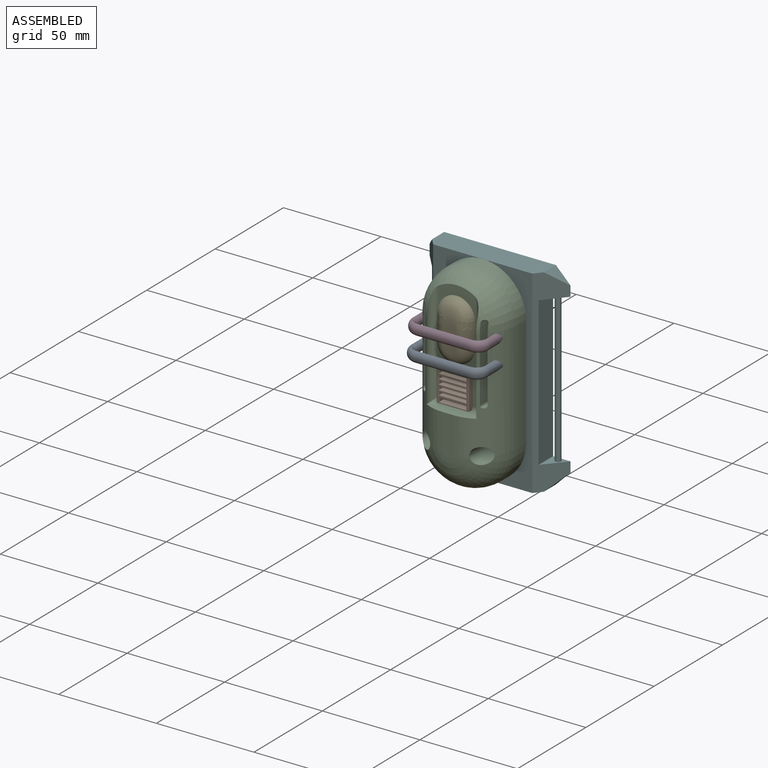
[diagram: assembled view]
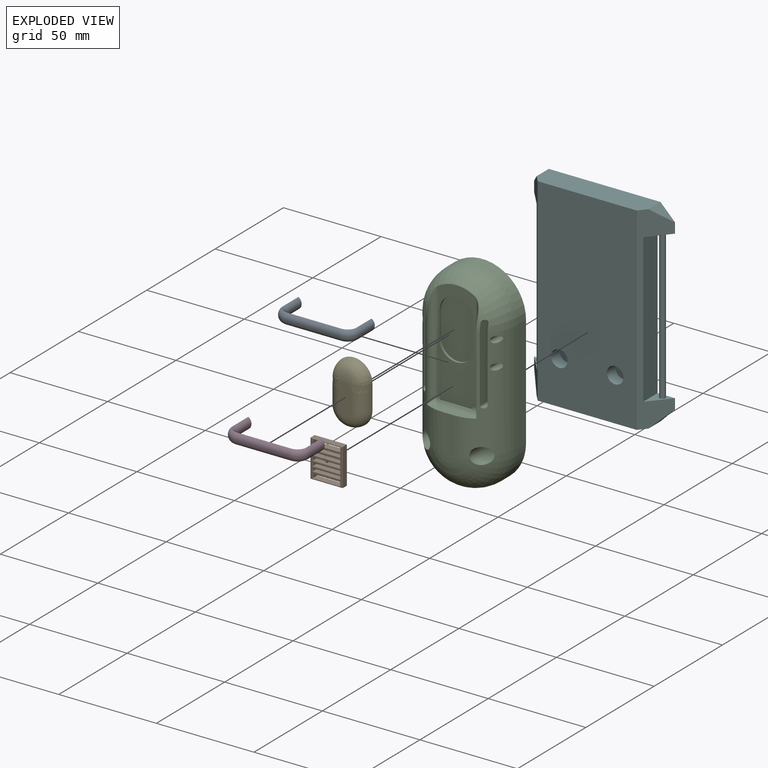
[diagram: exploded view]
GUIDED TOUR — MATED ASSEMBLY (Onshape document c567451063621104b3c18379, AutoMate assembly c567451063621104b3c18379_96ac85a3142e60ad1de8ab48_c5d411ce05994f89b3d22441_default)

This assembly has 6 components, labeled P0..P5 below (a component is one placed occurrence of a part; the same part can appear more than once), held together by 4 mates. A mate is a constraint between two components; its type names the relative motion it leaves free:
  FASTENED — locks the two components together rigidly (no relative motion).
Axis/direction vectors are unit vectors and 'through' points are millimeter coordinates, both in the assembly's world frame.

MATES
  1. FASTENED "Fastened 1": P5 <-> P2, direction (0.000, -1.000, 0.000) through (-89.15, -25.70, -35.47) mm
  2. FASTENED "Fastened 2": P2 <-> P1, direction (0.000, -1.000, 0.000) through (-83.13, -44.46, 2.50) mm
  3. FASTENED "Fastened 4": P3 <-> P2, direction (0.000, 1.000, 0.000) through (-93.67, -38.40, 18.06) mm
  4. FASTENED "Fastened 3": P2 <-> P4, direction (0.000, -1.000, 0.000) through (-74.88, -43.44, 24.73) mm

ASSEMBLY ORDER
  1. P2 — the base component [order heuristic]
  2. P3 — core [order heuristic]
  3. P4 — core [order heuristic]
  4. P0 [order verified]
  5. P1 [order verified]
  6. P5 [order verified]
Order-tag legend:
  [order verified] — this step's position reverses a verified removal order: the component was checked to insert without passing through the ones already placed.
  [order heuristic] — the first 3 components form the assembly's core: parts whose collision-free extraction could not be verified, listed in mate-graph order.

Of the 6 components, 4 carry the full construction recipe — the FeatureScript program that regenerates the part's solid from scratch; the rest are supplied as boundary geometry only.
Each toured component is shown spotlighted twice — in the assembled view, then in the exploded view, where a leader line traces a displaced component back to its assembled socket (saturated green if recipe-attached, orange if geometry-only; every other component desaturated gray) — followed by its recipe or geometry summary and the mates that hold it.
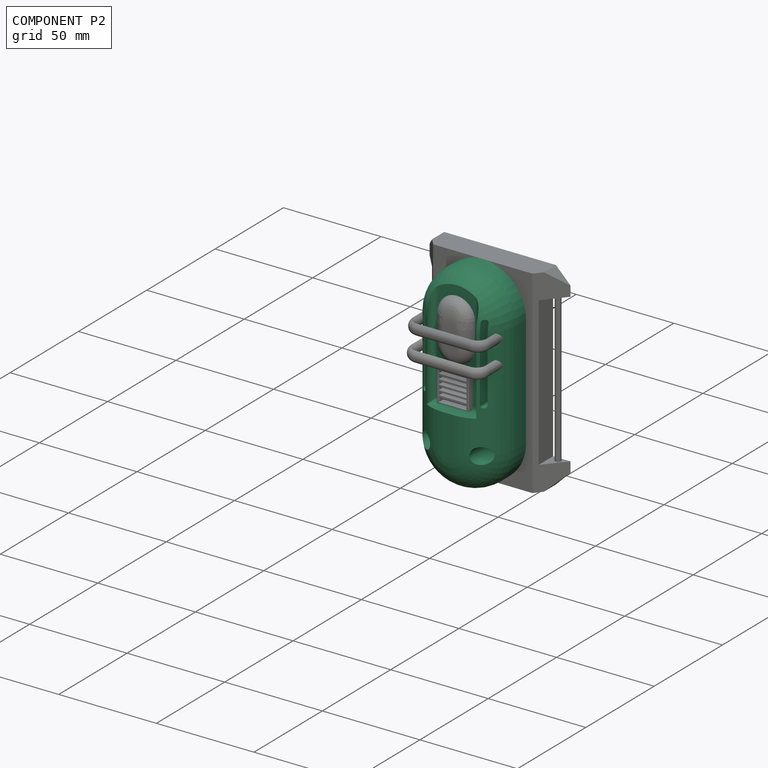
[diagram: component P2 — assembled]
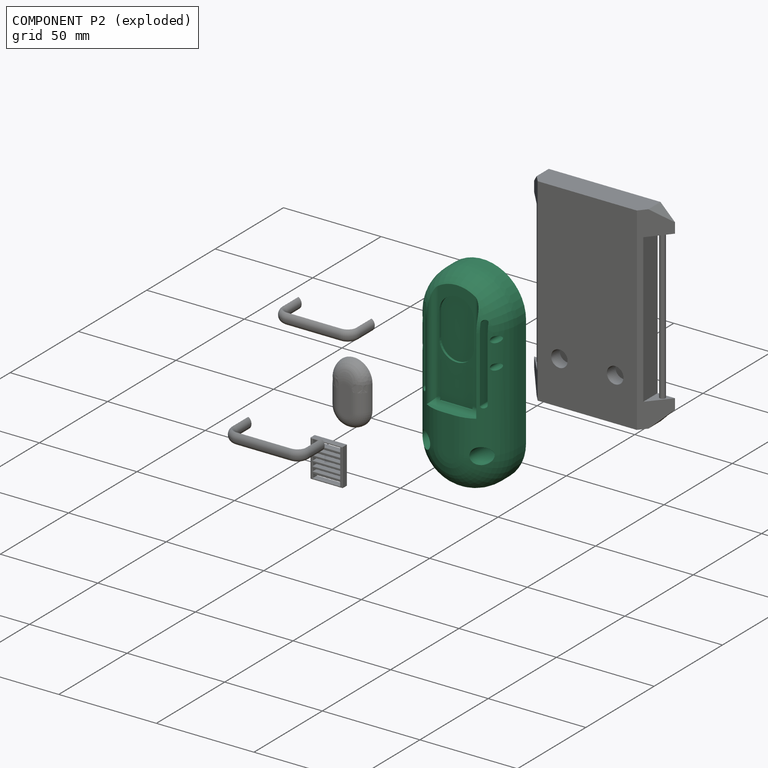
[diagram: component P2 — exploded]
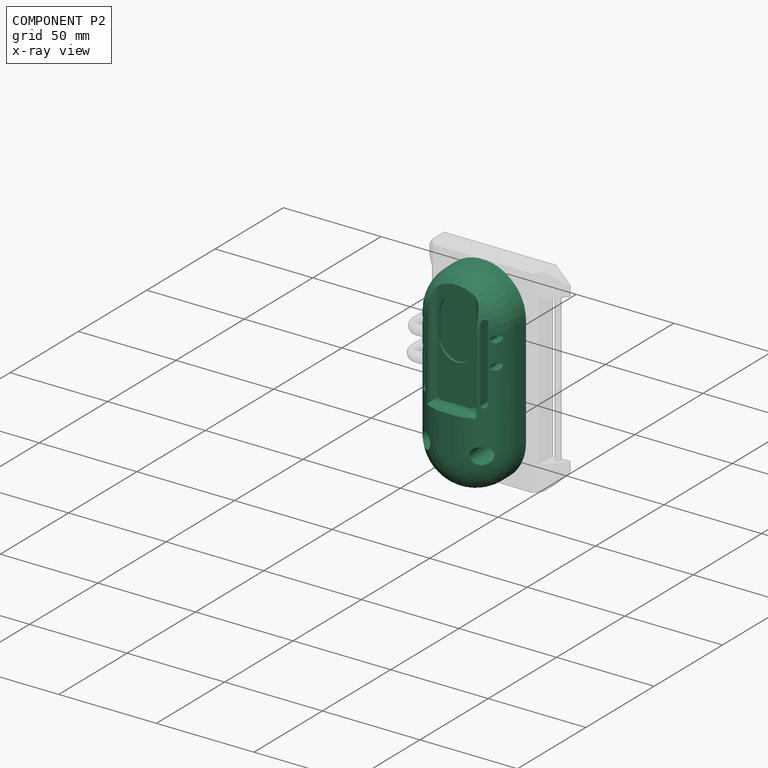
[diagram: component P2 — x-ray view]
COMPONENT P2 — recipe-attached (CADFS 00113752, mesh-verified: the recipe's output STEP matches this component's geometry to below the mesh-comparison resolution (tessellation chordal tolerance ~0.17 mm)).
Held by: FASTENED mate "Fastened 1" to P5; FASTENED mate "Fastened 2" to P1; FASTENED mate "Fastened 4" to P3; FASTENED mate "Fastened 3" to P4.
Construction recipe (FeatureScript — the CAD program that rebuilds this solid; sketch coordinates are in the units given by the * unit suffixes, e.g. mm):

FeatureScript 1540;
import(path : "onshape/std/geometry.fs", version : "1540.0");
import(path : "onshape/std/common.fs", version : "1540.0");
const mm = millimeter;
const VERTEX = EntityType.VERTEX;
const EDGE = EntityType.EDGE;
const FACE = EntityType.FACE;
const BODY = EntityType.BODY;
function v(x, y){return vector(x, y);}
function OD(order){return orderDisambiguation(order);}
function OSD(set){return originalSetDisambiguation(set);}
function TD(topology){return topologyDisambiguation(topology);}
function TDD(query){return trueDependencyDisambiguation(query);}
function sQuery(a, b, c) {return sketchEntityQuery(a, b, c);}

annotation { "Feature Type Name" : "Feature", "Feature Type Description" : "" }
export const myFeature = defineFeature(function(context is Context, id is Id, definition is map)
    precondition{}
    {
        {
            var Q0;
            Q0=qCreatedBy(makeId("Front.planeOp"),FACE);
            var sketch = newSketch(context, id + "F0", { "sketchPlane" : qUnion([Q0])});
            skLineSegment(sketch, "E0.bottom", {"start": v(25.4, 50.8) * mm, "end": v(-25.4, 50.8) * mm});
            skLineSegment(sketch, "E0.top", {"start": v(25.4, -50.8) * mm, "end": v(-25.4, -50.8) * mm});
            skLineSegment(sketch, "E0.left", {"start": v(25.4, 50.8) * mm, "end": v(25.4, -50.8) * mm});
            skLineSegment(sketch, "E0.right", {"start": v(-25.4, 50.8) * mm, "end": v(-25.4, -50.8) * mm});
            skPoint(sketch, "E0.middle", {"position": v(0, 0) * mm});
            skSolve(sketch);
        }
        {
            var Q0;
            Q0=qSketchRegion(id+"F0",true);
            extrude(context, id + "F1", {"entities" : qUnion([Q0]), "depth" : 12.7 * mm});
        }
        {
            var Q0;
            Q0=qCreatedBy(makeId("Front.planeOp"),FACE);
            cPlane(context, id + "F2", {"entities" : qUnion([Q0]), "cplaneType" : CPlaneType.OFFSET, "offset" : 12.7 * mm, "width" : 152.4 * mm, "height" : 152.4 * mm});
        }
        {
            var Q0;
            Q0=qCreatedBy(id+"F2.planeOp",FACE);
            var sketch = newSketch(context, id + "F3", { "sketchPlane" : qUnion([Q0])});
            skLineSegment(sketch, "E1.bottom", {"start": v(22.23, 28.57) * mm, "end": v(-22.22, 28.57) * mm});
            skLineSegment(sketch, "E1.top", {"start": v(22.22, -28.58) * mm, "end": v(-22.22, -28.58) * mm});
            skLineSegment(sketch, "E1.left", {"start": v(22.22, 28.57) * mm, "end": v(22.22, -28.58) * mm});
            skLineSegment(sketch, "E1.right", {"start": v(-22.23, 28.57) * mm, "end": v(-22.23, -28.58) * mm});
            skPoint(sketch, "E1.middle", {"position": v(0, 0) * mm});
            skArc(sketch, "E2", {"start": v(22.23, 28.58) * mm, "mid": v(0, 50.8) * mm, "end": v(-22.23, 28.57) * mm});
            skArc(sketch, "E3", {"start": v(-22.23, -28.58) * mm, "mid": v(0, -50.8) * mm, "end": v(22.23, -28.58) * mm});
            skSolve(sketch);
        }
        {
            var Q0;
            Q0=qSketchRegion(id+"F3",true);
            extrude(context, id + "F4", {"entities" : qUnion([Q0]), "operationType" : NewBodyOperationType.ADD, "depth" : 25.4 * mm});
        }
        {
            var Q0;
            Q0=makeQuery(id+"F4.opExtrude","CAP_EDGE",EDGE,{"disambiguationData":[OSD([sQuery(id+"F3.wireOp",EDGE,"E1.left")])],"isStart":false});
            fillet(context, id + "F5", {"entities" : qUnion([Q0]), "radius" : 19.05 * mm, "tangentPropagation" : true, "allowEdgeOverflow" : false});
        }
        {
            var Q0;
            Q0=makeQuery(id+"F4.opExtrude","CAP_FACE",FACE,{"disambiguationData":[OSD([sQuery(id+"F3.wireOp",EDGE,"E1.left"),sQuery(id+"F3.wireOp",EDGE,"E1.right"),sQuery(id+"F3.wireOp",EDGE,"E2"),sQuery(id+"F3.wireOp",EDGE,"E3")])],"isStart":false});
            var sketch = newSketch(context, id + "F6", { "sketchPlane" : qUnion([Q0])});
            skLineSegment(sketch, "E4.left", {"start": v(12.7, 103.58) * mm, "end": v(12.7, 7.15) * mm});
            skLineSegment(sketch, "E4.right", {"start": v(-12.7, 103.58) * mm, "end": v(-12.7, 7.15) * mm});
            skPoint(sketch, "E5.middle", {"position": v(0, 31.75) * mm});
            skLineSegment(sketch, "E6", {"start": v(-12.7, 103.58) * mm, "end": v(12.7, 103.58) * mm});
            skPoint(sketch, "E7.orphan", {"position": v(-12.7, 56.35) * mm});
            skPoint(sketch, "E8.orphan", {"position": v(12.7, 56.35) * mm});
            skLineSegment(sketch, "E9.top", {"start": v(-12.7, -11.11) * mm, "end": v(12.7, -11.11) * mm});
            skLineSegment(sketch, "E9.left", {"start": v(-12.7, 7.15) * mm, "end": v(-12.7, -11.11) * mm});
            skLineSegment(sketch, "E9.right", {"start": v(12.7, 7.15) * mm, "end": v(12.7, -11.11) * mm});
            skSolve(sketch);
        }
        {
            var Q0;
            Q0=qSketchRegion(id+"F6",true);
            extrude(context, id + "F7", {"entities" : qUnion([Q0]), "operationType" : NewBodyOperationType.REMOVE, "oppositeDirection" : true, "depth" : 6.35 * mm});
        }
        {
            var Q0;
            {var subQ0=sQuery(id+"F3.wireOp",EDGE,"E1.left");var subQ1=sQuery(id+"F3.wireOp",EDGE,"E1.right");var subQ2=sQuery(id+"F3.wireOp",EDGE,"E3");Q0=makeQuery(id+"F7.boolean.opBoolean","SPLIT",FACE,{"disambiguationData":[TD([makeQuery(id+"F5.opFillet","BLEND_FACE",FACE,{"disambiguationData":[OSD([subQ2])]})])],"derivedFrom":makeQuery(id+"F4.opExtrude","CAP_FACE",FACE,{"disambiguationData":[OSD([subQ0,subQ1,sQuery(id+"F3.wireOp",EDGE,"E2"),subQ2])],"isStart":false})});}
            var sketch = newSketch(context, id + "F8", { "sketchPlane" : qUnion([Q0])});
            skCircle(sketch, "E10", {"center": v(-14.27, -28.45) * mm, "radius": 4.23 * mm});
            skCircle(sketch, "E11.MirrorC", {"center": v(14.27, -28.45) * mm, "radius": 4.23 * mm});
            skSolve(sketch);
        }
        {
            var Q0;
            Q0=qSketchRegion(id+"F8",true);
            extrude(context, id + "F9", {"entities" : qUnion([Q0]), "operationType" : NewBodyOperationType.REMOVE, "oppositeDirection" : true, "depth" : 25.4 * mm});
        }
        {
            var Q0;
            {var subQ0=sQuery(id+"F3.wireOp",EDGE,"E1.left");var subQ1=sQuery(id+"F3.wireOp",EDGE,"E1.right");var subQ2=sQuery(id+"F3.wireOp",EDGE,"E3");Q0=makeQuery(id+"F7.boolean.opBoolean","SPLIT",FACE,{"disambiguationData":[TD([makeQuery(id+"F5.opFillet","BLEND_FACE",FACE,{"disambiguationData":[OSD([subQ2])]})])],"derivedFrom":makeQuery(id+"F4.opExtrude","CAP_FACE",FACE,{"disambiguationData":[OSD([subQ0,subQ1,sQuery(id+"F3.wireOp",EDGE,"E2"),subQ2])],"isStart":false})});}
            var sketch = newSketch(context, id + "F10", { "sketchPlane" : qUnion([Q0])});
            skLineSegment(sketch, "E12.left", {"start": v(-16.5, 33.08) * mm, "end": v(-16.5, -5.02) * mm});
            skLineSegment(sketch, "E12.right", {"start": v(-13.97, 33.08) * mm, "end": v(-13.97, -5.02) * mm});
            skArc(sketch, "E13", {"start": v(-13.97, 33.08) * mm, "mid": v(-15.24, 34.35) * mm, "end": v(-16.5, 33.08) * mm});
            skArc(sketch, "E14", {"start": v(-16.5, -5.02) * mm, "mid": v(-15.24, -6.3) * mm, "end": v(-13.97, -5.02) * mm});
            skLineSegment(sketch, "E15.MirrorCS", {"start": v(16.5, 33.08) * mm, "end": v(16.5, -5.02) * mm});
            skLineSegment(sketch, "E16.MirrorCS", {"start": v(13.97, 33.08) * mm, "end": v(13.97, -5.02) * mm});
            skArc(sketch, "E17.MirrorCS", {"start": v(16.5, -5.02) * mm, "mid": v(15.24, -6.3) * mm, "end": v(13.97, -5.02) * mm});
            skArc(sketch, "E18.MirrorCS", {"start": v(13.97, 33.08) * mm, "mid": v(15.24, 34.35) * mm, "end": v(16.5, 33.08) * mm});
            skSolve(sketch);
        }
        {
            var Q0;
            Q0=qSketchRegion(id+"F10",true);
            extrude(context, id + "F11", {"entities" : qUnion([Q0]), "operationType" : NewBodyOperationType.REMOVE, "oppositeDirection" : true, "depth" : 12.7 * mm});
        }
        {
            var Q0;
            Q0=qCreatedBy(makeId("Top.planeOp"),FACE);
            cPlane(context, id + "F12", {"entities" : qUnion([Q0]), "cplaneType" : CPlaneType.OFFSET, "offset" : 28.57 * mm, "width" : 152.4 * mm, "height" : 152.4 * mm});
        }
        {
            var Q0;
            Q0=makeQuery(id+"F7.boolean.opBoolean","COPY",EDGE,{"derivedFrom":makeQuery(id+"F7.opExtrude","CAP_EDGE",EDGE,{"disambiguationData":[OSD([sQuery(id+"F6.wireOp",EDGE,"E4.left"),sQuery(id+"F6.wireOp",EDGE,"E9.right")])],"isStart":false})});
            var Q1;
            Q1=makeQuery(id+"F7.boolean.opBoolean","COPY",EDGE,{"derivedFrom":makeQuery(id+"F7.opExtrude","CAP_EDGE",EDGE,{"disambiguationData":[OSD([sQuery(id+"F6.wireOp",EDGE,"E4.right"),sQuery(id+"F6.wireOp",EDGE,"E9.left")])],"isStart":false})});
            var Q2;
            Q2=makeQuery(id+"F7.boolean.opBoolean","COPY",EDGE,{"derivedFrom":makeQuery(id+"F7.opExtrude","CAP_EDGE",EDGE,{"disambiguationData":[OSD([sQuery(id+"F6.wireOp",EDGE,"E9.top")])],"isStart":false})});
            fillet(context, id + "F13", {"entities" : qUnion([Q0, Q1, Q2]), "radius" : 3.17 * mm, "tangentPropagation" : true, "allowEdgeOverflow" : false});
        }
        {
            var Q0;
            Q0=qCreatedBy(makeId("Top.planeOp"),FACE);
            var sketch = newSketch(context, id + "F14", { "sketchPlane" : qUnion([Q0])});
            skCircle(sketch, "E19", {"center": v(-0.3, 165.55) * mm, "radius": 168.33 * mm});
            skPoint(sketch, "E19.first.point", {"position": v(-30.78, 0) * mm});
            skPoint(sketch, "E19.second.point", {"position": v(30.2, 0) * mm});
            skPoint(sketch, "E19.third.point", {"position": v(13.86, -2.19) * mm});
            skSolve(sketch);
        }
        {
            var Q0;
            Q0=qSketchRegion(id+"F14",true);
            extrude(context, id + "F15", {"entities" : qUnion([Q0]), "operationType" : NewBodyOperationType.REMOVE, "depth" : 152.4 * mm, "symmetric" : true});
        }
        {
            var Q0;
            Q0=makeQuery(id+"F1.opExtrude","SWEPT_BODY",BODY,{"disambiguationData":[OSD([sQuery(id+"F0.wireOp",EDGE,"E0.bottom"),sQuery(id+"F0.wireOp",EDGE,"E0.top"),sQuery(id+"F0.wireOp",EDGE,"E0.left"),sQuery(id+"F0.wireOp",EDGE,"E0.right")])]});
            transform(context, id + "F16", {"entities" : qUnion([Q0]), "transformType" : TransformType.TRANSLATION_3D, "dx" : 0 * mm, "dy" : 0 * mm, "dz" : 0 * mm, "makeCopy" : true});
        }
        {
            var Q0;
            Q0=makeQuery(id+"F16.opPattern","COPY",BODY,{"derivedFrom":makeQuery(id+"F1.opExtrude","SWEPT_BODY",BODY,{"disambiguationData":[OSD([sQuery(id+"F0.wireOp",EDGE,"E0.bottom"),sQuery(id+"F0.wireOp",EDGE,"E0.top"),sQuery(id+"F0.wireOp",EDGE,"E0.left"),sQuery(id+"F0.wireOp",EDGE,"E0.right")])]}),"instanceName":"1"});
            deleteBodies(context, id + "F17", {"entities" : qUnion([Q0])});
        }
        {
            var Q0;
            Q0=qCreatedBy(makeId("Right.planeOp"),FACE);
            var sketch = newSketch(context, id + "F18", { "sketchPlane" : qUnion([Q0])});
            skLineSegment(sketch, "E20.bottom", {"start": v(5.64, 54.27) * mm, "end": v(-12.74, 54.27) * mm});
            skLineSegment(sketch, "E20.top", {"start": v(5.64, -63.07) * mm, "end": v(-12.74, -63.07) * mm});
            skLineSegment(sketch, "E20.left", {"start": v(5.64, 54.27) * mm, "end": v(5.64, -63.07) * mm});
            skLineSegment(sketch, "E20.right", {"start": v(-12.74, 54.27) * mm, "end": v(-12.74, -63.07) * mm});
            skSolve(sketch);
        }
        {
            var Q0;
            Q0 = qSketchRegion(id + "F18", true);
            extrude(context, id + "F19", {"entities" : qUnion([Q0]), "operationType" : NewBodyOperationType.REMOVE, "oppositeDirection" : true, "depth" : 76.2 * mm, "symmetric" : true});
        }
        {
            var Q0;
            Q0=qCreatedBy(id+"F2.planeOp",FACE);
            var sketch = newSketch(context, id + "F20", { "sketchPlane" : qUnion([Q0])});
            skCircle(sketch, "E21", {"center": v(-18.8, 25.08) * mm, "radius": 1.65 * mm});
            skCircle(sketch, "E22", {"center": v(-18.8, 12.38) * mm, "radius": 1.65 * mm});
            skCircle(sketch, "E23.MirrorC", {"center": v(18.8, 25.08) * mm, "radius": 1.65 * mm});
            skCircle(sketch, "E24.MirrorC", {"center": v(18.8, 12.38) * mm, "radius": 1.65 * mm});
            skSolve(sketch);
        }
        {
            var Q0;
            Q0 = qSketchRegion(id + "F20", true);
            extrude(context, id + "F21", {"entities" : qUnion([Q0]), "operationType" : NewBodyOperationType.REMOVE, "depth" : 25.4 * mm});
        }
        {
            var Q0;
            Q0=makeQuery(id+"F7.boolean.opBoolean","COPY",FACE,{"derivedFrom":makeQuery(id+"F7.opExtrude","CAP_FACE",FACE,{"disambiguationData":[OSD([sQuery(id+"F6.wireOp",EDGE,"E4.left"),sQuery(id+"F6.wireOp",EDGE,"E4.right"),sQuery(id+"F6.wireOp",EDGE,"E6"),sQuery(id+"F6.wireOp",EDGE,"E9.top"),sQuery(id+"F6.wireOp",EDGE,"E9.left"),sQuery(id+"F6.wireOp",EDGE,"E9.right")])],"isStart":false})});
            var sketch = newSketch(context, id + "F22", { "sketchPlane" : qUnion([Q0])});
            skLineSegment(sketch, "E25.bottom", {"start": v(8.89, 31.75) * mm, "end": v(-8.89, 31.75) * mm});
            skLineSegment(sketch, "E25.top", {"start": v(8.9, 19.05) * mm, "end": v(-8.89, 19.05) * mm});
            skLineSegment(sketch, "E25.left", {"start": v(8.9, 31.75) * mm, "end": v(8.9, 19.05) * mm});
            skLineSegment(sketch, "E25.right", {"start": v(-8.89, 31.75) * mm, "end": v(-8.89, 19.05) * mm});
            skPoint(sketch, "E25.middle", {"position": v(0, 25.4) * mm});
            skArc(sketch, "E26", {"start": v(8.89, 31.75) * mm, "mid": v(0, 40.64) * mm, "end": v(-8.9, 31.75) * mm});
            skArc(sketch, "E27", {"start": v(-8.89, 19.05) * mm, "mid": v(0, 10.16) * mm, "end": v(8.9, 19.05) * mm});
            skSolve(sketch);
        }
        {
            var Q0;
            Q0 = qSketchRegion(id + "F22", true);
            extrude(context, id + "F23", {"entities" : qUnion([Q0]), "operationType" : NewBodyOperationType.REMOVE, "oppositeDirection" : true, "depth" : 1.27 * mm});
        }
        {
            var Q0;
            Q0=makeQuery(id+"F7.boolean.opBoolean","COPY",FACE,{"derivedFrom":makeQuery(id+"F7.opExtrude","CAP_FACE",FACE,{"disambiguationData":[OSD([sQuery(id+"F6.wireOp",EDGE,"E4.left"),sQuery(id+"F6.wireOp",EDGE,"E4.right"),sQuery(id+"F6.wireOp",EDGE,"E6"),sQuery(id+"F6.wireOp",EDGE,"E9.top"),sQuery(id+"F6.wireOp",EDGE,"E9.left"),sQuery(id+"F6.wireOp",EDGE,"E9.right")])],"isStart":false})});
            var sketch = newSketch(context, id + "F24", { "sketchPlane" : qUnion([Q0])});
            skLineSegment(sketch, "E28.bottom", {"start": v(8.26, 9.53) * mm, "end": v(-8.26, 9.53) * mm});
            skLineSegment(sketch, "E28.top", {"start": v(8.26, -9.53) * mm, "end": v(-8.26, -9.53) * mm});
            skLineSegment(sketch, "E28.left", {"start": v(8.26, 9.53) * mm, "end": v(8.26, -9.53) * mm});
            skLineSegment(sketch, "E28.right", {"start": v(-8.26, 9.53) * mm, "end": v(-8.26, -9.53) * mm});
            skPoint(sketch, "E28.middle", {"position": v(0, 0) * mm});
            skSolve(sketch);
        }
        {
            var Q0;
            Q0 = qSketchRegion(id + "F24", true);
            extrude(context, id + "F25", {"entities" : qUnion([Q0]), "operationType" : NewBodyOperationType.REMOVE, "oppositeDirection" : true, "depth" : 0.25 * mm, "hasSecondDirection" : true, "secondDirectionOppositeDirection" : false, "secondDirectionDepth" : 25.4 * mm});
        }
    });
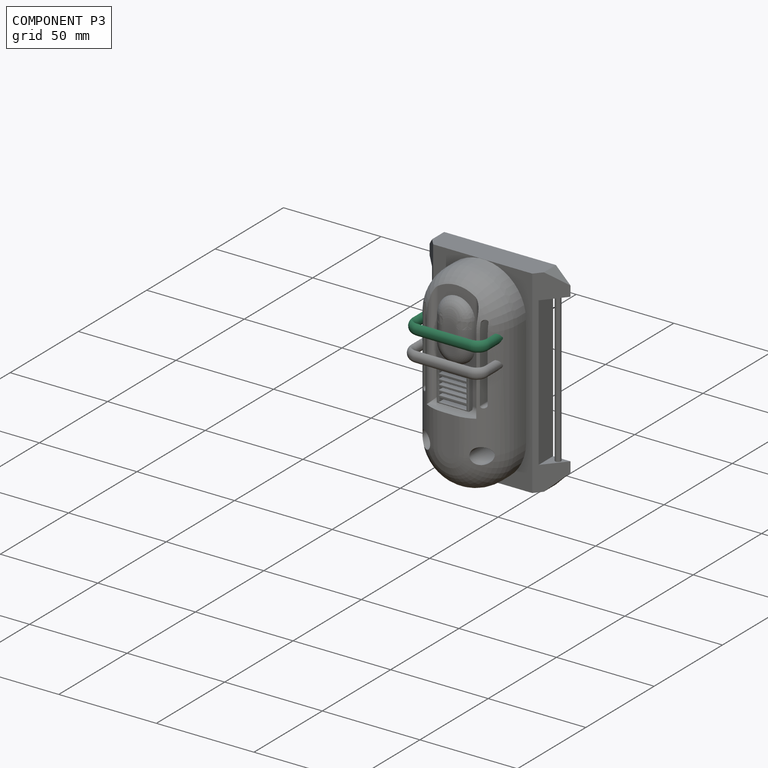
[diagram: component P3 — assembled]
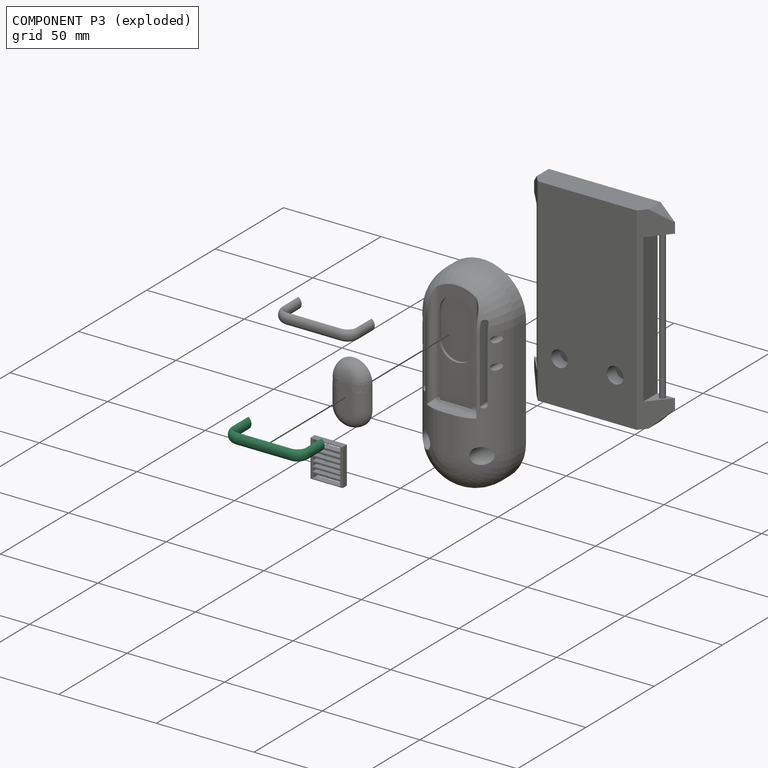
[diagram: component P3 — exploded]
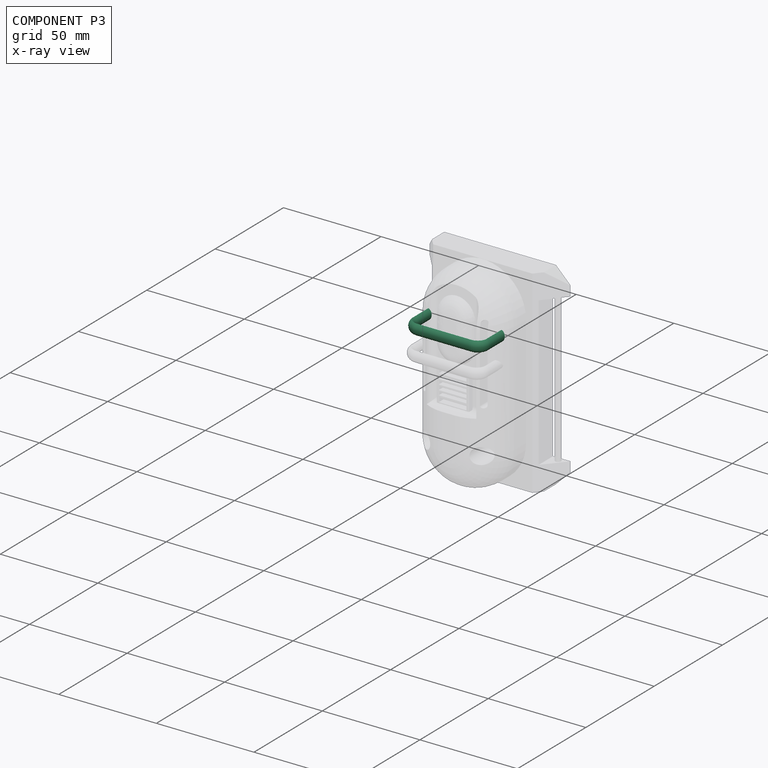
[diagram: component P3 — x-ray view]
COMPONENT P3 — same part as P0 (CADFS 00113755); its construction recipe is shown at P0.
Held by: FASTENED mate "Fastened 4" to P2.
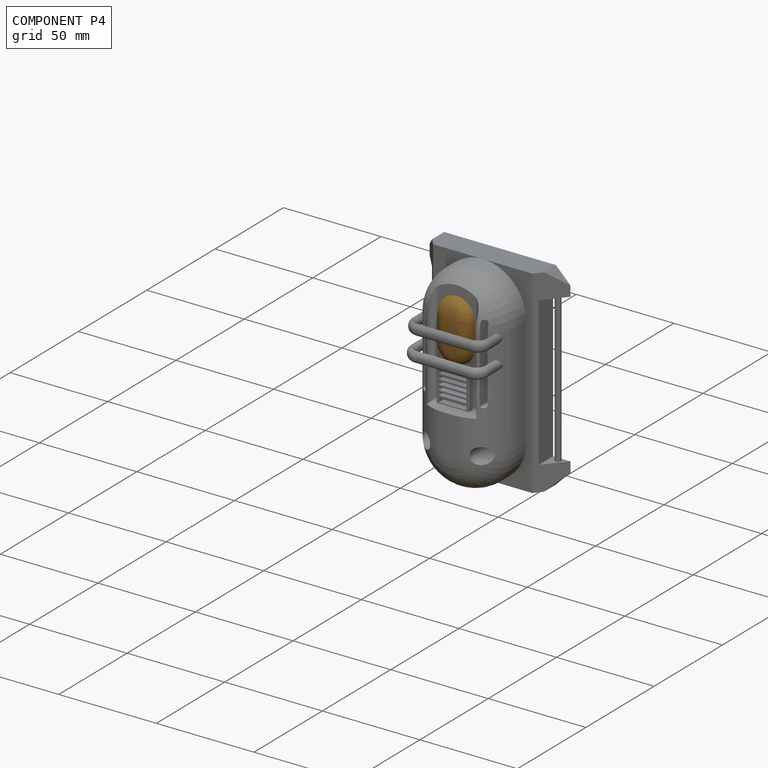
[diagram: component P4 — assembled]
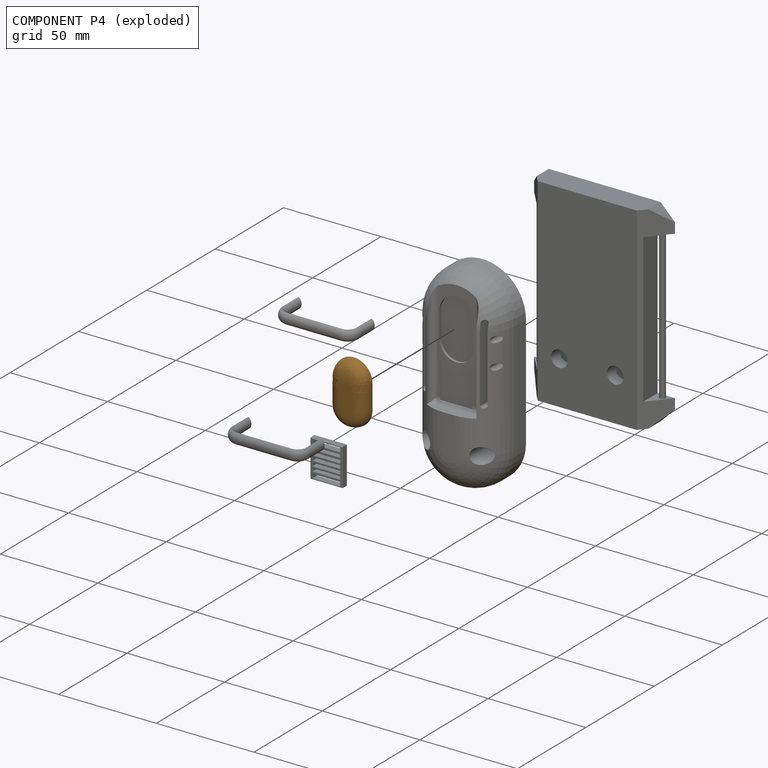
[diagram: component P4 — exploded]
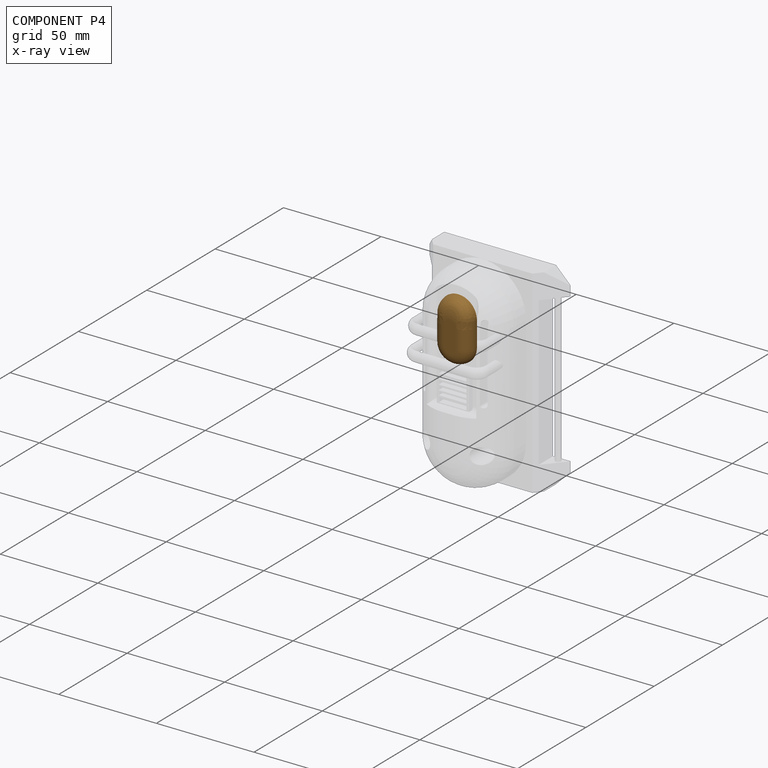
[diagram: component P4 — x-ray view]
COMPONENT P4 — geometry summary (no construction recipe available for this part):
  bounding box: 31.8 x 19.1 x 6.4 mm
  B-rep topology: 1 solid, 13 faces, 54 edges
  volume: 2658 mm^3 (69% of its bounding box)
  symmetry: mirror-symmetric across its x mid-plane
Held by: FASTENED mate "Fastened 3" to P2.
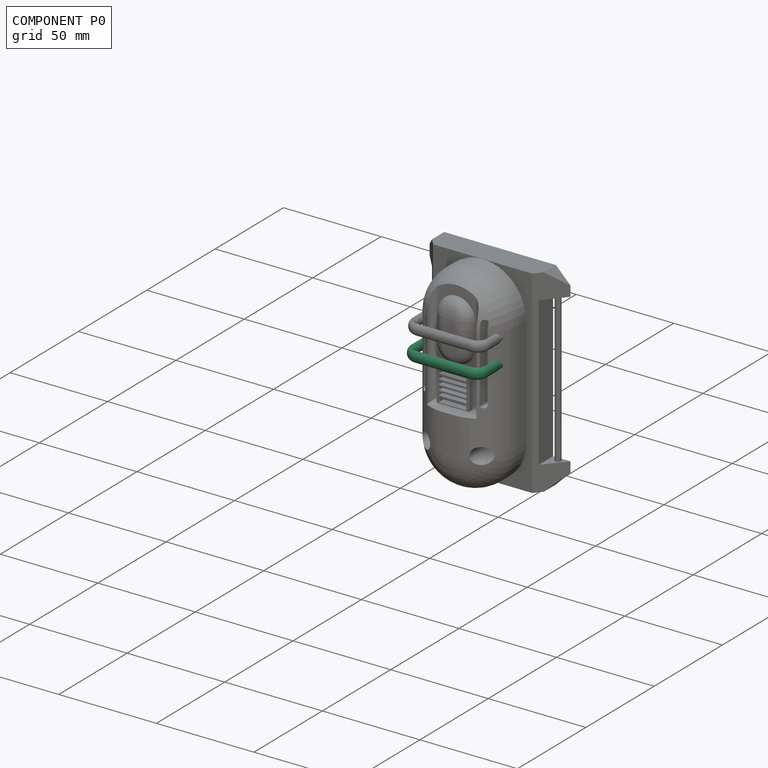
[diagram: component P0 — assembled]
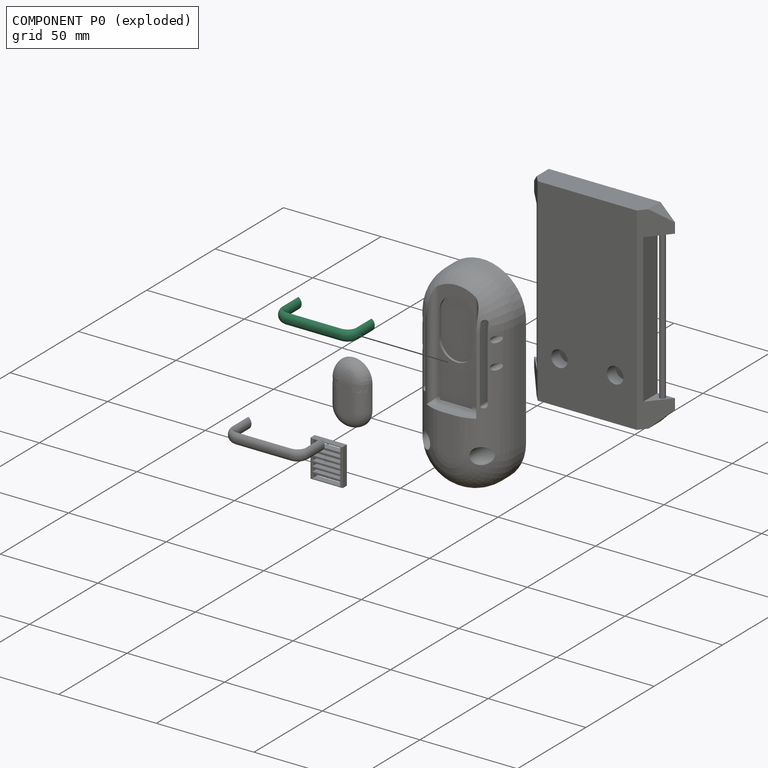
[diagram: component P0 — exploded]
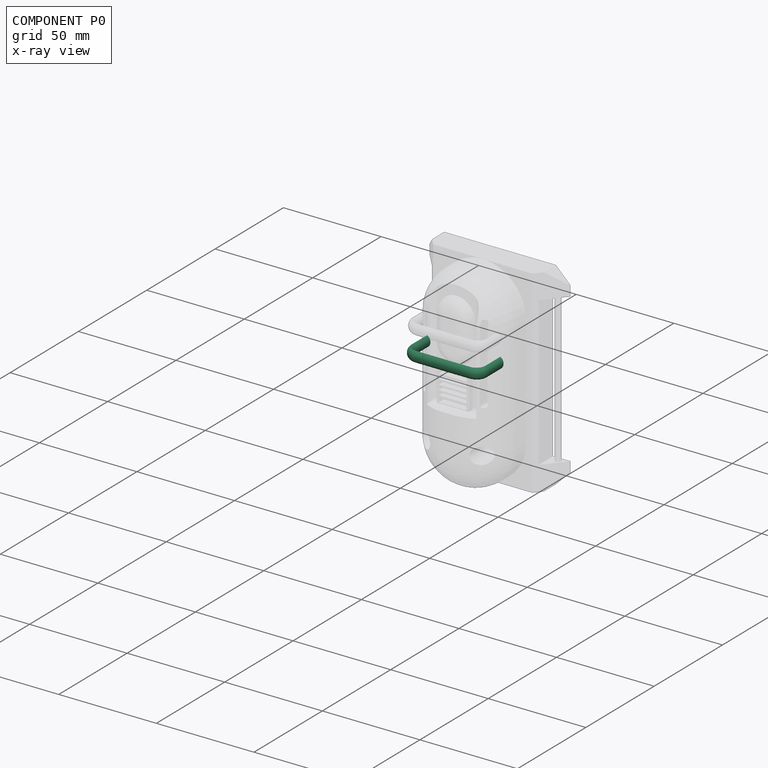
[diagram: component P0 — x-ray view]
COMPONENT P0 — recipe-attached (CADFS 00113755, mesh-verified: the recipe's output STEP matches this component's geometry to below the mesh-comparison resolution (tessellation chordal tolerance ~0.0667 mm)).
Held by: no mates (free).
Construction recipe (FeatureScript — the CAD program that rebuilds this solid; sketch coordinates are in the units given by the * unit suffixes, e.g. mm):

FeatureScript 1540;
import(path : "onshape/std/geometry.fs", version : "1540.0");
import(path : "onshape/std/common.fs", version : "1540.0");
const mm = millimeter;
const VERTEX = EntityType.VERTEX;
const EDGE = EntityType.EDGE;
const FACE = EntityType.FACE;
const BODY = EntityType.BODY;
function v(x, y){return vector(x, y);}
function OD(order){return orderDisambiguation(order);}
function OSD(set){return originalSetDisambiguation(set);}
function TD(topology){return topologyDisambiguation(topology);}
function TDD(query){return trueDependencyDisambiguation(query);}
function sQuery(a, b, c) {return sketchEntityQuery(a, b, c);}

annotation { "Feature Type Name" : "Feature", "Feature Type Description" : "" }
export const myFeature = defineFeature(function(context is Context, id is Id, definition is map)
    precondition{}
    {
        {
            var Q0;
            Q0=qCreatedBy(makeId("Front.planeOp"),FACE);
            var sketch = newSketch(context, id + "F0", { "sketchPlane" : qUnion([Q0])});
            skLineSegment(sketch, "E0.bottom", {"start": v(25.4, 50.8) * mm, "end": v(-25.4, 50.8) * mm});
            skLineSegment(sketch, "E0.top", {"start": v(25.4, -50.8) * mm, "end": v(-25.4, -50.8) * mm});
            skLineSegment(sketch, "E0.left", {"start": v(25.4, 50.8) * mm, "end": v(25.4, -50.8) * mm});
            skLineSegment(sketch, "E0.right", {"start": v(-25.4, 50.8) * mm, "end": v(-25.4, -50.8) * mm});
            skPoint(sketch, "E0.middle", {"position": v(0, 0) * mm});
            skSolve(sketch);
        }
        {
            var Q0;
            Q0=qSketchRegion(id+"F0",true);
            extrude(context, id + "F1", {"entities" : qUnion([Q0]), "depth" : 12.7 * mm});
        }
        {
            var Q0;
            Q0=qCreatedBy(makeId("Top.planeOp"),FACE);
            var sketch = newSketch(context, id + "F2", { "sketchPlane" : qUnion([Q0])});
            skLineSegment(sketch, "E1", {"start": v(25.4, 0) * mm, "end": v(36.1, 0) * mm});
            skLineSegment(sketch, "E2", {"start": v(36.1, 0) * mm, "end": v(25.4, -12.67) * mm});
            skLineSegment(sketch, "E3", {"start": v(25.4, -12.67) * mm, "end": v(25.4, 0) * mm});
            skLineSegment(sketch, "E4.MirrorCS", {"start": v(-36.1, 0) * mm, "end": v(-25.4, -12.67) * mm});
            skLineSegment(sketch, "E5.MirrorCS", {"start": v(-25.4, -12.67) * mm, "end": v(-25.4, 0) * mm});
            skLineSegment(sketch, "E6.MirrorCS", {"start": v(-25.4, 0) * mm, "end": v(-36.1, 0) * mm});
            skSolve(sketch);
        }
        {
            var Q0;
            Q0=qSketchRegion(id+"F2",true);
            extrude(context, id + "F3", {"entities" : qUnion([Q0]), "operationType" : NewBodyOperationType.ADD, "depth" : 101.6 * mm, "symmetric" : true});
        }
        {
            var Q0;
            Q0=qCreatedBy(makeId("Top.planeOp"),FACE);
            var sketch = newSketch(context, id + "F4", { "sketchPlane" : qUnion([Q0])});
            skCircle(sketch, "E7", {"center": v(-31.41, -2.42) * mm, "radius": 1.43 * mm});
            skCircle(sketch, "E8.MirrorC", {"center": v(31.41, -2.42) * mm, "radius": 1.43 * mm});
            skLineSegment(sketch, "E9.bottom", {"start": v(27.18, 1.43) * mm, "end": v(39.9, 1.43) * mm});
            skLineSegment(sketch, "E9.top", {"start": v(27.18, -11.19) * mm, "end": v(39.9, -11.19) * mm});
            skLineSegment(sketch, "E9.left", {"start": v(27.18, 1.43) * mm, "end": v(27.18, -11.19) * mm});
            skLineSegment(sketch, "E9.right", {"start": v(39.9, 1.43) * mm, "end": v(39.9, -11.19) * mm});
            skLineSegment(sketch, "E10.MirrorCS", {"start": v(-27.18, -11.19) * mm, "end": v(-39.9, -11.19) * mm});
            skLineSegment(sketch, "E11.MirrorCS", {"start": v(-39.9, 1.43) * mm, "end": v(-39.9, -11.19) * mm});
            skLineSegment(sketch, "E12.MirrorCS", {"start": v(-27.18, 1.43) * mm, "end": v(-39.9, 1.43) * mm});
            skLineSegment(sketch, "E13.MirrorCS", {"start": v(-27.18, 1.43) * mm, "end": v(-27.18, -11.19) * mm});
            skSolve(sketch);
        }
        {
            var Q0;
            Q0=makeQuery(id+"F4.imprint","IMPRINT",FACE,{"disambiguationData":[TD([[makeQuery(id+"F4.imprint","IMPRINT",EDGE,{"derivedFrom":sQuery(id+"F4.wireOp",EDGE,"E8.MirrorC")}),1.0]])]});
            var Q1;
            Q1=makeQuery(id+"F4.imprint","IMPRINT",FACE,{"disambiguationData":[TD([[makeQuery(id+"F4.imprint","IMPRINT",EDGE,{"derivedFrom":sQuery(id+"F4.wireOp",EDGE,"E7")}),-1.0]])]});
            extrude(context, id + "F5", {"entities" : qUnion([Q0, Q1]), "operationType" : NewBodyOperationType.REMOVE, "oppositeDirection" : true, "depth" : 76.2 * mm, "symmetric" : true});
        }
        {
            var Q0;
            Q0=qCreatedBy(makeId("Front.planeOp"),FACE);
            var sketch = newSketch(context, id + "F6", { "sketchPlane" : qUnion([Q0])});
            skLineSegment(sketch, "E14", {"start": v(-40.53, 38.9) * mm, "end": v(-23.28, 56.16) * mm});
            skLineSegment(sketch, "E15", {"start": v(-23.28, 56.16) * mm, "end": v(-40.53, 56.16) * mm});
            skLineSegment(sketch, "E16", {"start": v(-40.53, 56.16) * mm, "end": v(-40.53, 38.9) * mm});
            skLineSegment(sketch, "E17.MirrorCS", {"start": v(40.53, 56.16) * mm, "end": v(40.53, 38.9) * mm});
            skLineSegment(sketch, "E18.MirrorCS", {"start": v(23.28, 56.16) * mm, "end": v(40.53, 56.16) * mm});
            skLineSegment(sketch, "E19.MirrorCS", {"start": v(40.53, 38.9) * mm, "end": v(23.28, 56.16) * mm});
            skLineSegment(sketch, "E20.MirrorCS", {"start": v(-40.53, -56.16) * mm, "end": v(-40.53, -38.9) * mm});
            skLineSegment(sketch, "E21.MirrorCS", {"start": v(-23.28, -56.16) * mm, "end": v(-40.53, -56.16) * mm});
            skLineSegment(sketch, "E22.MirrorCS", {"start": v(-40.53, -38.9) * mm, "end": v(-23.28, -56.16) * mm});
            skLineSegment(sketch, "E23.MirrorCS", {"start": v(40.53, -38.9) * mm, "end": v(23.28, -56.16) * mm});
            skLineSegment(sketch, "E24.MirrorCS", {"start": v(23.28, -56.16) * mm, "end": v(40.53, -56.16) * mm});
            skLineSegment(sketch, "E25.MirrorCS", {"start": v(40.53, -56.16) * mm, "end": v(40.53, -38.9) * mm});
            skSolve(sketch);
        }
        {
            var Q0;
            Q0=makeQuery(id+"F6.imprint","IMPRINT",FACE,{"disambiguationData":[TD([[makeQuery(id+"F6.imprint","IMPRINT",EDGE,{"derivedFrom":sQuery(id+"F6.wireOp",EDGE,"E17.MirrorCS")}),-1.0]])]});
            var Q1;
            Q1=makeQuery(id+"F6.imprint","IMPRINT",FACE,{"disambiguationData":[TD([[makeQuery(id+"F6.imprint","IMPRINT",EDGE,{"derivedFrom":sQuery(id+"F6.wireOp",EDGE,"E20.MirrorCS")}),-1.0]])]});
            var Q2;
            Q2=makeQuery(id+"F6.imprint","IMPRINT",FACE,{"disambiguationData":[TD([[makeQuery(id+"F6.imprint","IMPRINT",EDGE,{"derivedFrom":sQuery(id+"F6.wireOp",EDGE,"E23.MirrorCS")}),1.0]])]});
            var Q3;
            Q3=makeQuery(id+"F6.imprint","IMPRINT",FACE,{"disambiguationData":[TD([[makeQuery(id+"F6.imprint","IMPRINT",EDGE,{"derivedFrom":sQuery(id+"F6.wireOp",EDGE,"E14")}),1.0]])]});
            extrude(context, id + "F7", {"entities" : qUnion([Q0, Q1, Q2, Q3]), "operationType" : NewBodyOperationType.REMOVE, "endBound" : BoundingType.THROUGH_ALL, "depth" : 25.4 * mm});
        }
        {
            var Q0;
            Q0=qCreatedBy(makeId("Top.planeOp"),FACE);
            cPlane(context, id + "F8", {"entities" : qUnion([Q0]), "cplaneType" : CPlaneType.OFFSET, "offset" : 28.57 * mm, "width" : 152.4 * mm, "height" : 152.4 * mm});
        }
        {
            var Q0;
            Q0=qCreatedBy(id+"F8.planeOp",FACE);
            cPlane(context, id + "F9", {"entities" : qUnion([Q0]), "cplaneType" : CPlaneType.OFFSET, "offset" : 12.7 * mm, "oppositeDirection" : true, "width" : 152.4 * mm, "height" : 152.4 * mm});
        }
        {
            var Q0;
            Q0=qCreatedBy(id+"F9.planeOp",FACE);
            var sketch = newSketch(context, id + "F10", { "sketchPlane" : qUnion([Q0])});
            skLineSegment(sketch, "E26.bottom", {"start": v(13.97, -44.11) * mm, "end": v(-13.97, -44.11) * mm});
            skLineSegment(sketch, "E26.left", {"start": v(20.32, -37.76) * mm, "end": v(20.32, -27.06) * mm});
            skLineSegment(sketch, "E26.right", {"start": v(-20.32, -37.76) * mm, "end": v(-20.32, -27.06) * mm});
            skPoint(sketch, "E26.middle", {"position": v(0, -34) * mm});
            skLineSegment(sketch, "E27.bottom", {"start": v(13.97, -40.94) * mm, "end": v(-13.97, -40.94) * mm});
            skLineSegment(sketch, "E27.top", {"start": v(20.32, -27.06) * mm, "end": v(15.84, -27.06) * mm});
            skLineSegment(sketch, "E27.left", {"start": v(17.15, -37.76) * mm, "end": v(17.15, -27.06) * mm});
            skLineSegment(sketch, "E27.right", {"start": v(-17.15, -37.76) * mm, "end": v(-17.15, -27.06) * mm});
            skPoint(sketch, "E28.orphan", {"position": v(17.15, -27.06) * mm});
            skPoint(sketch, "E29.orphan", {"position": v(20.32, -23.88) * mm});
            skLineSegment(sketch, "E30.trimOffspring", {"start": v(-17.15, -27.06) * mm, "end": v(-20.32, -27.06) * mm});
            skPoint(sketch, "E31.orphan", {"position": v(-20.32, -23.88) * mm});
            skPoint(sketch, "E32.visualSharp", {"position": v(-20.32, -44.11) * mm});
            skArc(sketch, "E32.filletArc", {"start": v(-20.32, -37.76) * mm, "mid": v(-18.46, -42.25) * mm, "end": v(-13.97, -44.11) * mm});
            skPoint(sketch, "E33.visualSharp", {"position": v(-17.15, -40.94) * mm});
            skArc(sketch, "E33.filletArc", {"start": v(-17.15, -37.76) * mm, "mid": v(-16.22, -40) * mm, "end": v(-13.97, -40.94) * mm});
            skPoint(sketch, "E34.visualSharp", {"position": v(17.15, -40.94) * mm});
            skArc(sketch, "E34.filletArc", {"start": v(13.97, -40.94) * mm, "mid": v(16.22, -40) * mm, "end": v(17.15, -37.76) * mm});
            skPoint(sketch, "E35.visualSharp", {"position": v(20.32, -44.11) * mm});
            skArc(sketch, "E35.filletArc", {"start": v(13.97, -44.11) * mm, "mid": v(18.46, -42.25) * mm, "end": v(20.32, -37.76) * mm});
            skSolve(sketch);
        }
        {
            var Q0;
            Q0=qSketchRegion(id+"F10",true);
            extrude(context, id + "F11", {"entities" : qUnion([Q0]), "operationType" : NewBodyOperationType.ADD, "depth" : 6.35 * mm, "symmetric" : true});
        }
        {
            var Q0;
            Q0=makeQuery(id+"F11.opExtrude","CAP_EDGE",EDGE,{"disambiguationData":[OSD([sQuery(id+"F10.wireOp",EDGE,"E26.bottom")])],"isStart":false});
            var Q1;
            Q1=makeQuery(id+"F11.opExtrude","CAP_EDGE",EDGE,{"disambiguationData":[OSD([sQuery(id+"F10.wireOp",EDGE,"E27.bottom")])],"isStart":false});
            var Q2;
            Q2=makeQuery(id+"F11.opExtrude","CAP_EDGE",EDGE,{"disambiguationData":[OSD([sQuery(id+"F10.wireOp",EDGE,"E26.bottom")])],"isStart":true});
            var Q3;
            Q3=makeQuery(id+"F11.opExtrude","CAP_EDGE",EDGE,{"disambiguationData":[OSD([sQuery(id+"F10.wireOp",EDGE,"E27.bottom")])],"isStart":true});
            fillet(context, id + "F12", {"entities" : qUnion([Q0, Q1, Q2, Q3]), "radius" : 3.05 * mm, "tangentPropagation" : true, "allowEdgeOverflow" : false});
        }
        {
            var Q0;
            Q0=qCreatedBy(makeId("Right.planeOp"),FACE);
            var sketch = newSketch(context, id + "F13", { "sketchPlane" : qUnion([Q0])});
            skLineSegment(sketch, "E36.bottom", {"start": v(-16.44, 65.02) * mm, "end": v(7.36, 65.02) * mm});
            skLineSegment(sketch, "E36.top", {"start": v(-16.44, -60.09) * mm, "end": v(7.36, -60.09) * mm});
            skLineSegment(sketch, "E36.left", {"start": v(-16.44, 65.02) * mm, "end": v(-16.44, -60.09) * mm});
            skLineSegment(sketch, "E36.right", {"start": v(7.36, 65.02) * mm, "end": v(7.36, -60.09) * mm});
            skSolve(sketch);
        }
        {
            var Q0;
            Q0 = qSketchRegion(id + "F13", true);
            extrude(context, id + "F14", {"entities" : qUnion([Q0]), "operationType" : NewBodyOperationType.REMOVE, "oppositeDirection" : true, "depth" : 76.2 * mm, "symmetric" : true});
        }
    });
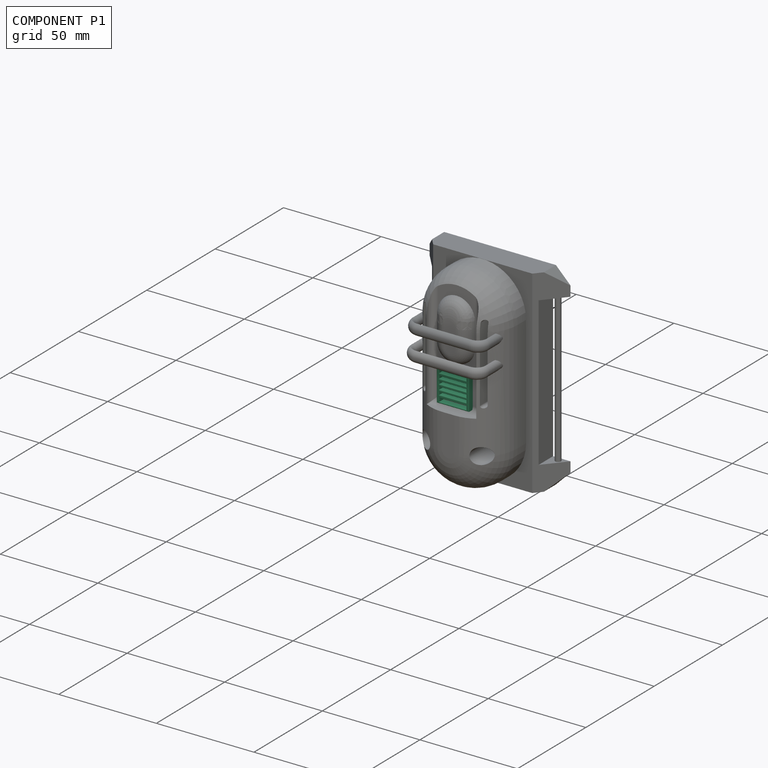
[diagram: component P1 — assembled]
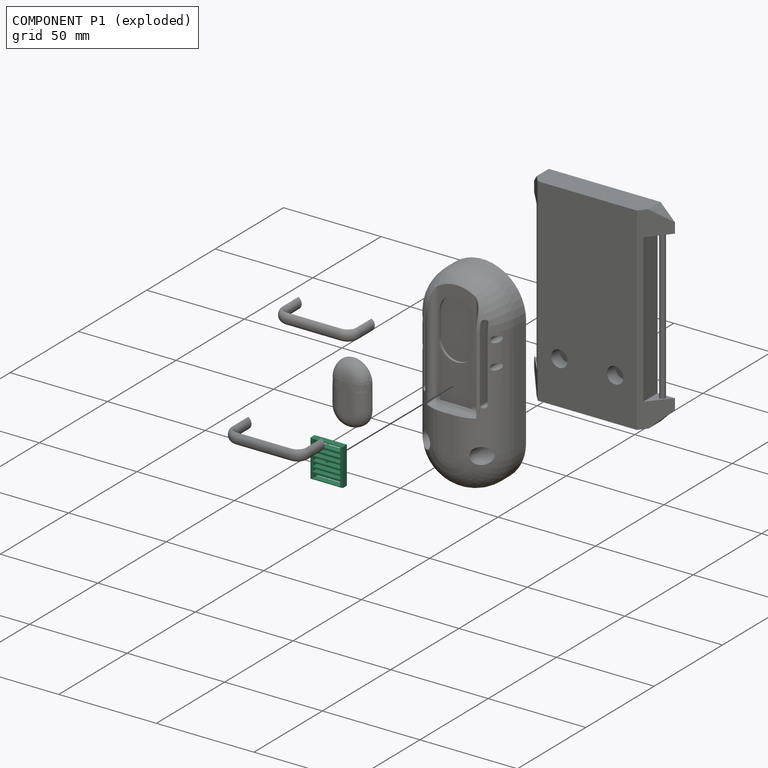
[diagram: component P1 — exploded]
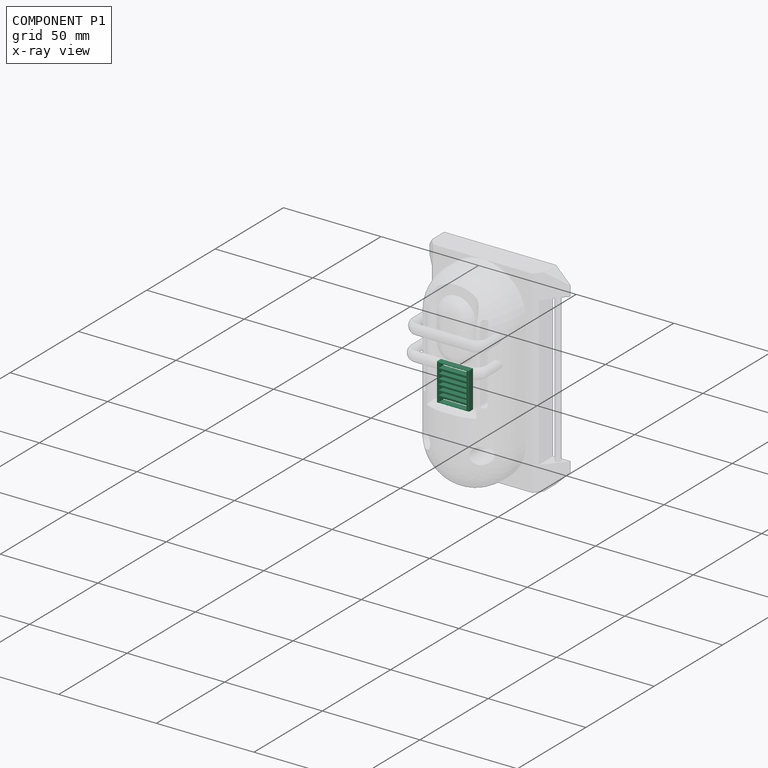
[diagram: component P1 — x-ray view]
COMPONENT P1 — recipe-attached (CADFS 00113754, mesh-verified: the recipe's output STEP matches this component's geometry to below the mesh-comparison resolution (tessellation chordal tolerance ~0.0381 mm)).
Held by: FASTENED mate "Fastened 2" to P2.
Construction recipe (FeatureScript — the CAD program that rebuilds this solid; sketch coordinates are in the units given by the * unit suffixes, e.g. mm):

FeatureScript 1540;
import(path : "onshape/std/geometry.fs", version : "1540.0");
import(path : "onshape/std/common.fs", version : "1540.0");
const mm = millimeter;
const VERTEX = EntityType.VERTEX;
const EDGE = EntityType.EDGE;
const FACE = EntityType.FACE;
const BODY = EntityType.BODY;
function v(x, y){return vector(x, y);}
function OD(order){return orderDisambiguation(order);}
function OSD(set){return originalSetDisambiguation(set);}
function TD(topology){return topologyDisambiguation(topology);}
function TDD(query){return trueDependencyDisambiguation(query);}
function sQuery(a, b, c) {return sketchEntityQuery(a, b, c);}

annotation { "Feature Type Name" : "Feature", "Feature Type Description" : "" }
export const myFeature = defineFeature(function(context is Context, id is Id, definition is map)
    precondition{}
    {
        {
            var Q0;
            Q0=qCreatedBy(makeId("Top.planeOp"),FACE);
            var sketch = newSketch(context, id + "F0", { "sketchPlane" : qUnion([Q0])});
            skLineSegment(sketch, "E0.bottom", {"start": v(7.13, 8.73) * mm, "end": v(-6.8, 8.73) * mm});
            skLineSegment(sketch, "E0.top", {"start": v(7.13, -9.05) * mm, "end": v(-6.8, -9.05) * mm});
            skLineSegment(sketch, "E0.left", {"start": v(7.13, 8.73) * mm, "end": v(7.13, 6.84) * mm});
            skLineSegment(sketch, "E0.right", {"start": v(-6.8, 8.73) * mm, "end": v(-6.8, 6.84) * mm});
            skPoint(sketch, "E0.middle", {"position": v(0.16, -0.16) * mm});
            skPoint(sketch, "E1.orphan", {"position": v(-6.8, -0.16) * mm});
            skPoint(sketch, "E2.start.orphan", {"position": v(7.13, -0.16) * mm});
            skLineSegment(sketch, "E3.bottom", {"start": v(8.42, 9.36) * mm, "end": v(-8.1, 9.36) * mm});
            skLineSegment(sketch, "E3.top", {"start": v(8.42, -9.69) * mm, "end": v(-8.1, -9.69) * mm});
            skLineSegment(sketch, "E3.left", {"start": v(8.42, 9.36) * mm, "end": v(8.42, -9.69) * mm});
            skLineSegment(sketch, "E3.right", {"start": v(-8.1, 9.36) * mm, "end": v(-8.1, -9.69) * mm});
            skLineSegment(sketch, "E4.bottom", {"start": v(7.13, 5.53) * mm, "end": v(-6.8, 5.53) * mm});
            skLineSegment(sketch, "E4.top", {"start": v(7.13, 6.84) * mm, "end": v(-6.8, 6.84) * mm});
            skPoint(sketch, "E4.middle", {"position": v(0.16, 6.19) * mm});
            skLineSegment(sketch, "E5.bottom", {"start": v(7.13, 3.1) * mm, "end": v(-6.8, 3.1) * mm});
            skLineSegment(sketch, "E5.top", {"start": v(7.13, 4.19) * mm, "end": v(-6.8, 4.19) * mm});
            skPoint(sketch, "E5.middle", {"position": v(0.16, 3.65) * mm});
            skLineSegment(sketch, "E6.bottom", {"start": v(7.13, 0.54) * mm, "end": v(-6.8, 0.54) * mm});
            skLineSegment(sketch, "E6.top", {"start": v(7.13, 1.67) * mm, "end": v(-6.8, 1.67) * mm});
            skPoint(sketch, "E6.middle", {"position": v(0.16, 1.1) * mm});
            skLineSegment(sketch, "E7.bottom", {"start": v(7.13, -2) * mm, "end": v(-6.8, -2) * mm});
            skLineSegment(sketch, "E7.top", {"start": v(7.13, -0.88) * mm, "end": v(-6.8, -0.88) * mm});
            skPoint(sketch, "E7.middle", {"position": v(0.16, -1.43) * mm});
            skLineSegment(sketch, "E8.bottom", {"start": v(7.13, -4.6) * mm, "end": v(-6.8, -4.6) * mm});
            skLineSegment(sketch, "E8.top", {"start": v(7.13, -3.36) * mm, "end": v(-6.8, -3.36) * mm});
            skPoint(sketch, "E8.middle", {"position": v(0.16, -3.97) * mm});
            skLineSegment(sketch, "E9.bottom", {"start": v(7.13, -7.12) * mm, "end": v(-6.8, -7.12) * mm});
            skLineSegment(sketch, "E9.top", {"start": v(7.13, -5.9) * mm, "end": v(-6.8, -5.9) * mm});
            skPoint(sketch, "E9.middle", {"position": v(0.16, -6.51) * mm});
            skLineSegment(sketch, "E10.trimOffspring", {"start": v(-6.8, 5.53) * mm, "end": v(-6.8, 4.19) * mm});
            skLineSegment(sketch, "E11.trimOffspring", {"start": v(-6.8, 3.1) * mm, "end": v(-6.8, 1.67) * mm});
            skLineSegment(sketch, "E12.trimOffspring", {"start": v(-6.8, 0.54) * mm, "end": v(-6.8, -0.16) * mm});
            skLineSegment(sketch, "E13.trimOffspring", {"start": v(-6.8, -2) * mm, "end": v(-6.8, -3.36) * mm});
            skLineSegment(sketch, "E14.trimOffspring", {"start": v(-6.8, -4.6) * mm, "end": v(-6.8, -5.9) * mm});
            skLineSegment(sketch, "E15.trimOffspring", {"start": v(-6.8, -7.12) * mm, "end": v(-6.8, -9.05) * mm});
            skLineSegment(sketch, "E16.trimOffspring", {"start": v(7.13, -7.12) * mm, "end": v(7.13, -9.05) * mm});
            skLineSegment(sketch, "E17.trimOffspring", {"start": v(7.13, -4.6) * mm, "end": v(7.13, -5.9) * mm});
            skLineSegment(sketch, "E18.trimOffspring", {"start": v(7.13, -2) * mm, "end": v(7.13, -3.36) * mm});
            skLineSegment(sketch, "E19.trimOffspring", {"start": v(7.13, 0.54) * mm, "end": v(7.13, -0.88) * mm});
            skLineSegment(sketch, "E20.trimOffspring", {"start": v(7.13, 3.1) * mm, "end": v(7.13, 1.67) * mm});
            skLineSegment(sketch, "E21.trimOffspring", {"start": v(7.13, 5.53) * mm, "end": v(7.13, 4.19) * mm});
            skLineSegment(sketch, "E22", {"start": v(-6.8, -0.88) * mm, "end": v(-6.8, -0.16) * mm});
            skSolve(sketch);
        }
        {
            var Q0;
            Q0=makeQuery(id+"F0.imprint","IMPRINT",FACE,{"disambiguationData":[TD([[makeQuery(id+"F0.imprint","IMPRINT",EDGE,{"derivedFrom":sQuery(id+"F0.wireOp",EDGE,"E0.bottom")}),-1.0]])]});
            extrude(context, id + "F1", {"entities" : qUnion([Q0]), "depth" : 3.17 * mm});
        }
        {
            var Q0;
            Q0=makeQuery(id+"F1.opExtrude","CAP_FACE",FACE,{"disambiguationData":[OSD([sQuery(id+"F0.wireOp",EDGE,"E0.bottom"),sQuery(id+"F0.wireOp",EDGE,"E0.top"),sQuery(id+"F0.wireOp",EDGE,"E0.left"),sQuery(id+"F0.wireOp",EDGE,"E0.right"),sQuery(id+"F0.wireOp",EDGE,"E3.bottom"),sQuery(id+"F0.wireOp",EDGE,"E3.top"),sQuery(id+"F0.wireOp",EDGE,"E3.left"),sQuery(id+"F0.wireOp",EDGE,"E3.right"),sQuery(id+"F0.wireOp",EDGE,"E4.bottom"),sQuery(id+"F0.wireOp",EDGE,"E4.top"),sQuery(id+"F0.wireOp",EDGE,"E5.bottom"),sQuery(id+"F0.wireOp",EDGE,"E5.top"),sQuery(id+"F0.wireOp",EDGE,"E6.bottom"),sQuery(id+"F0.wireOp",EDGE,"E6.top"),sQuery(id+"F0.wireOp",EDGE,"E7.bottom"),sQuery(id+"F0.wireOp",EDGE,"E7.top"),sQuery(id+"F0.wireOp",EDGE,"E8.bottom"),sQuery(id+"F0.wireOp",EDGE,"E8.top"),sQuery(id+"F0.wireOp",EDGE,"E9.bottom"),sQuery(id+"F0.wireOp",EDGE,"E9.top"),sQuery(id+"F0.wireOp",EDGE,"E10.trimOffspring"),sQuery(id+"F0.wireOp",EDGE,"E11.trimOffspring"),sQuery(id+"F0.wireOp",EDGE,"E12.trimOffspring"),sQuery(id+"F0.wireOp",EDGE,"E13.trimOffspring"),sQuery(id+"F0.wireOp",EDGE,"E14.trimOffspring"),sQuery(id+"F0.wireOp",EDGE,"E15.trimOffspring"),sQuery(id+"F0.wireOp",EDGE,"E16.trimOffspring"),sQuery(id+"F0.wireOp",EDGE,"E17.trimOffspring"),sQuery(id+"F0.wireOp",EDGE,"E18.trimOffspring"),sQuery(id+"F0.wireOp",EDGE,"E19.trimOffspring"),sQuery(id+"F0.wireOp",EDGE,"E20.trimOffspring"),sQuery(id+"F0.wireOp",EDGE,"E21.trimOffspring"),sQuery(id+"F0.wireOp",EDGE,"E22")])],"isStart":false});
            fillet(context, id + "F2", {"entities" : qUnion([Q0]), "radius" : 0.25 * mm, "tangentPropagation" : true, "allowEdgeOverflow" : false});
        }
    });
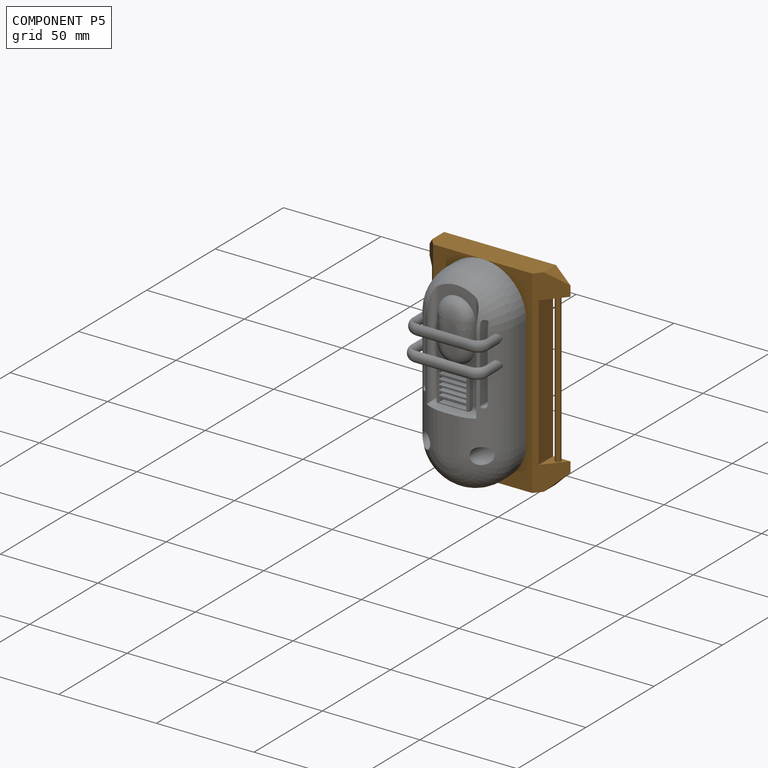
[diagram: component P5 — assembled]
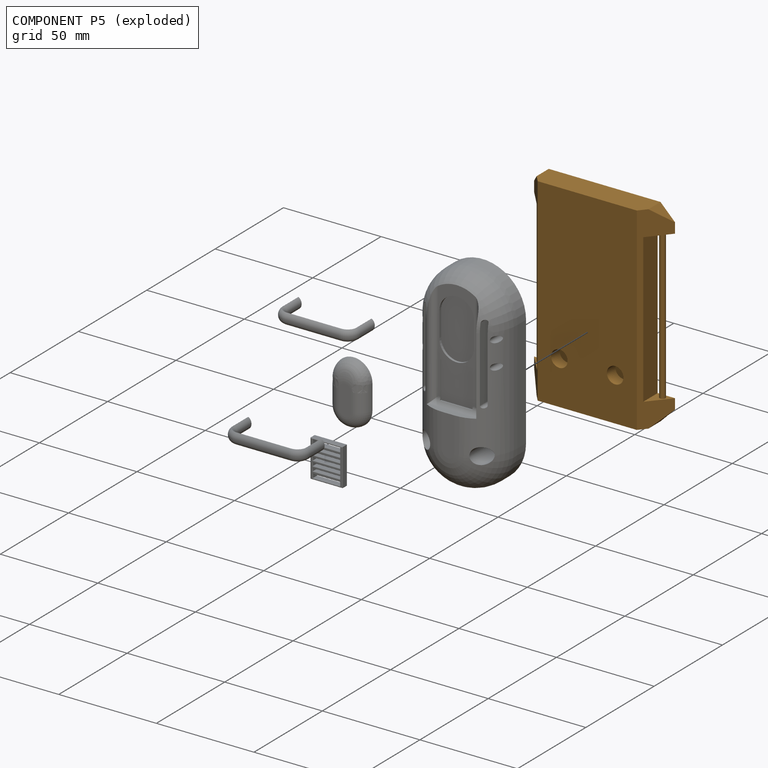
[diagram: component P5 — exploded]
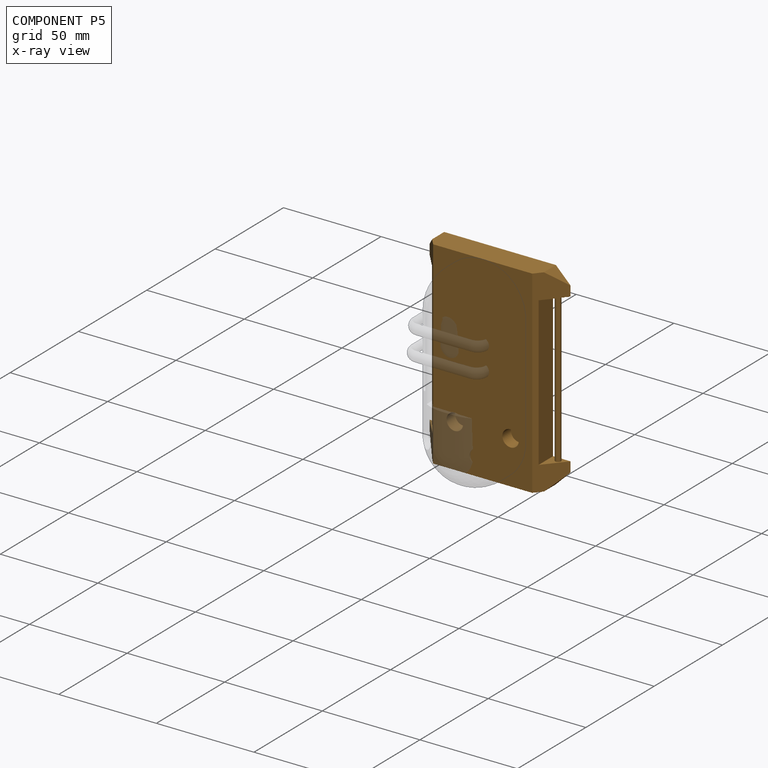
[diagram: component P5 — x-ray view]
COMPONENT P5 — geometry summary (no construction recipe available for this part):
  bounding box: 101.6 x 72.2 x 12.7 mm
  B-rep topology: 1 solid, 24 faces, 120 edges
  volume: 72075 mm^3 (77% of its bounding box)
  symmetry: mirror-symmetric across its x mid-plane
Held by: FASTENED mate "Fastened 1" to P2.
PROVENANCE & LICENSES
Assembly (occurrences, transforms, mates, per-part STEP geometry): AutoMate dataset, Zenodo record 7776208, CC0.
Construction recipes: CADFS (HuggingFace VladPyatov/CADFS, CC-BY-4.0, layered over the ABC dataset), FeatureScript reconstruction programs keyed by ABC model id.
Join: ABC meta listings map ABC model id -> Onshape documentId; within a shared document, parts are matched by geometric signature (bounding-box dims + volume at 0.1% relative tolerance, exact B-rep face/solid counts).
Verification: 4 of this assembly's 6 components carry a recipe attachment, and every attachment is mesh-verified: the CADFS STEP and the AutoMate member STEP were compared as meshes in their shared local frame (symmetric sampled-point-to-mesh distance); worst across the 4 attachments: below the mesh-comparison resolution (tessellation chordal tolerance ~0.17 mm) on a 114 mm part.
Renders: orthographic iso camera (az 35 / el 25); the floor grid conveys scale (grid pitch printed in each image; no ruler). In the exploded view each component is displaced by its stored offset vector: the offsets alone carry the explosion direction (mate normal/axis signs are not orientation cues and do not encode it), and separation distances are assigned per mate-chain, not proportionally to assembly-order depth.
